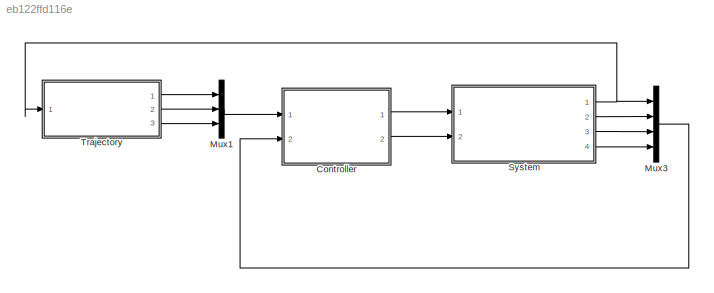
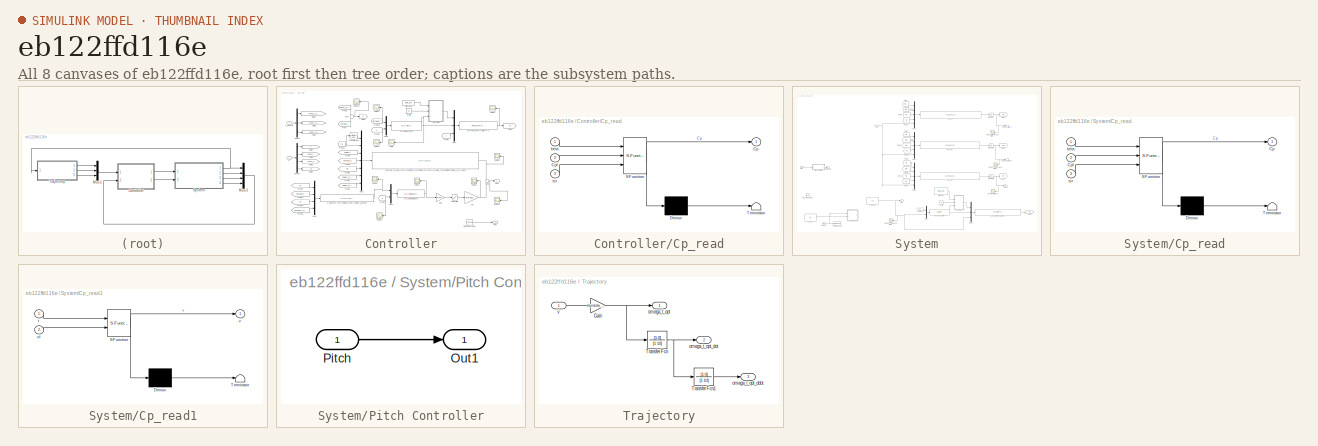
[diagram: thumbnail index - all 8 canvases of the model, root first then tree order]
MODEL slx_eb122ffd116e
KIND model
CONFIG AbsTol = auto
CONFIG FixedStep = auto
CONFIG MaxStep = auto
CONFIG MinStep = auto
CONFIG RelTol = 1e-3
CONFIG SampleTimeConstraint = Unconstrained
CONFIG Solver = VariableStepAuto
CONFIG SolverMode = Auto
CONFIG SolverName = VariableStepAuto
CONFIG StartTime = 0.0
CONFIG StopTime = 600
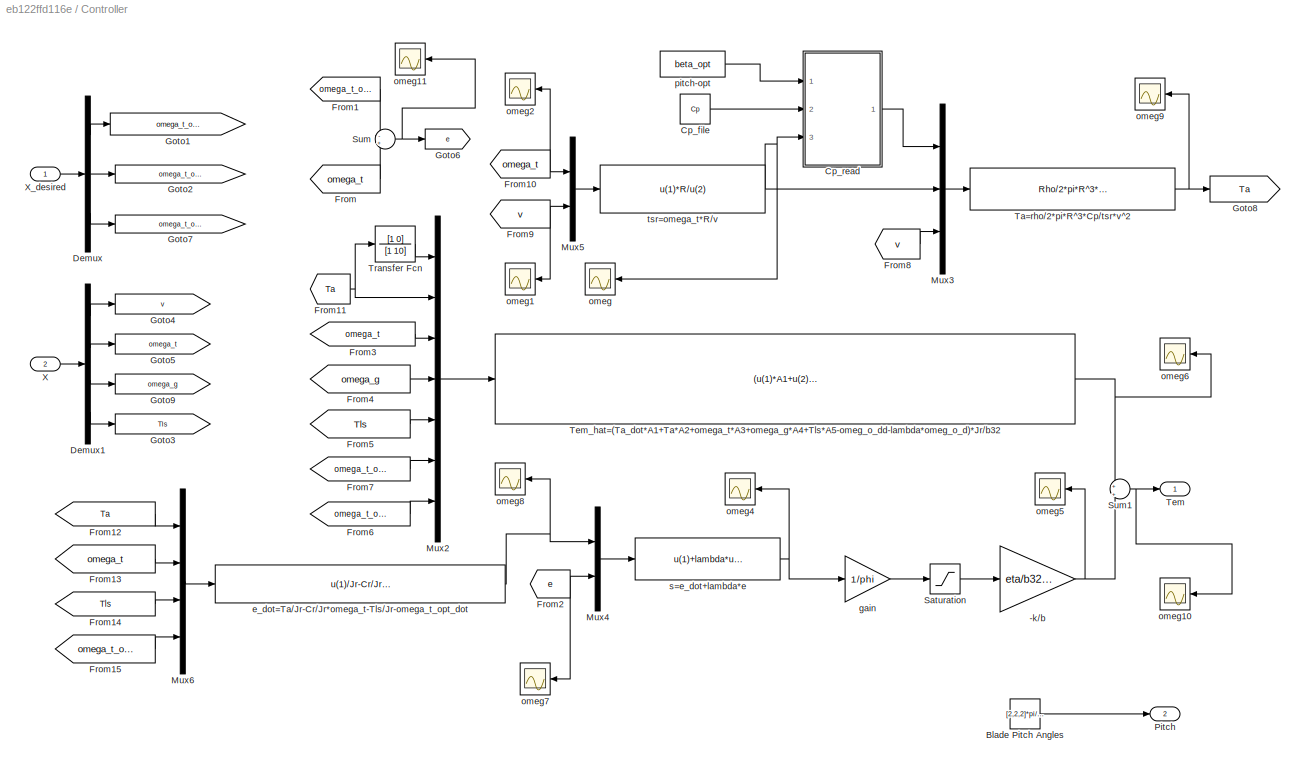
BLOCK [SubSystem] Controller
  Ports = [2, 2]
  RequestExecContextInheritance = off
  Variant = off
BLOCK [Gain] Controller/-k//b
  Gain = eta/b32*Jr
  OutDataTypeStr = Inherit: Inherit via internal rule
  ParamDataTypeStr = Inherit: Inherit via internal rule
  SaturateOnIntegerOverflow = off
BLOCK [Constant] Controller/Blade Pitch Angles
  Value = [2,2,2]*pi/180
BLOCK [Constant] Controller/Cp_file
  Value = Cp
BLOCK [SubSystem] Controller/Cp_read
  ErrorFcn = Stateflow.Translate.translate
  PermitHierarchicalResolution = ExplicitOnly
  Ports = [3, 1]
  RequestExecContextInheritance = off
  SFBlockType = MATLAB Function
  TreatAsAtomicUnit = on
  Variant = off
BLOCK [Demux] Controller/Cp_read/ Demux 
  Outputs = 1
  Ports = [1, 1]
BLOCK [S-Function] Controller/Cp_read/ SFunction 
  EnableBusSupport = on
  FunctionName = sf_sfun
  PortCounts = [3 2]
  Ports = [3, 2]
  SFunctionDeploymentMode = off
  Tag = Stateflow S-Function img_Closedloop 1
BLOCK [Terminator] Controller/Cp_read/ Terminator 
BLOCK [Outport] Controller/Cp_read/Cp
  IconDisplay = Port number
BLOCK [Inport] Controller/Cp_read/Cpf
  IconDisplay = Port number
  Port = 2
BLOCK [Inport] Controller/Cp_read/beta
  IconDisplay = Port number
BLOCK [Inport] Controller/Cp_read/tsr
  IconDisplay = Port number
  Port = 3
BLOCK [Demux] Controller/Demux
  DisplayOption = bar
  Outputs = 3
  Ports = [1, 3]
BLOCK [Demux] Controller/Demux1
  DisplayOption = bar
  Ports = [1, 4]
BLOCK [From] Controller/From
  GotoTag = omega_t
BLOCK [From] Controller/From1
  GotoTag = omega_t_opt
BLOCK [From] Controller/From10
  GotoTag = omega_t
BLOCK [From] Controller/From11
  GotoTag = Ta
BLOCK [From] Controller/From12
  GotoTag = Ta
BLOCK [From] Controller/From13
  GotoTag = omega_t
BLOCK [From] Controller/From14
  GotoTag = Tls
BLOCK [From] Controller/From15
  GotoTag = omega_t_opt_dot
BLOCK [From] Controller/From2
  GotoTag = e
BLOCK [From] Controller/From3
  GotoTag = omega_t
BLOCK [From] Controller/From4
  GotoTag = omega_g
BLOCK [From] Controller/From5
  GotoTag = Tls
BLOCK [From] Controller/From6
  GotoTag = omega_t_opt_dot
BLOCK [From] Controller/From7
  GotoTag = omega_t_opt_ddot
BLOCK [From] Controller/From8
  GotoTag = v
BLOCK [From] Controller/From9
  GotoTag = v
BLOCK [Goto] Controller/Goto1
  GotoTag = omega_t_opt
BLOCK [Goto] Controller/Goto2
  GotoTag = omega_t_opt_dot
BLOCK [Goto] Controller/Goto3
  GotoTag = Tls
BLOCK [Goto] Controller/Goto4
  GotoTag = v
BLOCK [Goto] Controller/Goto5
  GotoTag = omega_t
BLOCK [Goto] Controller/Goto6
  GotoTag = e
BLOCK [Goto] Controller/Goto7
  GotoTag = omega_t_opt_ddot
BLOCK [Goto] Controller/Goto8
  GotoTag = Ta
BLOCK [Goto] Controller/Goto9
  GotoTag = omega_g
BLOCK [Mux] Controller/Mux2
  DisplayOption = bar
  Inputs = 7
  Ports = [7, 1]
BLOCK [Mux] Controller/Mux3
  DisplayOption = bar
  Inputs = 3
  Ports = [3, 1]
BLOCK [Mux] Controller/Mux4
  DisplayOption = bar
  Inputs = 2
  Ports = [2, 1]
BLOCK [Mux] Controller/Mux5
  DisplayOption = bar
  Inputs = 2
  Ports = [2, 1]
BLOCK [Mux] Controller/Mux6
  DisplayOption = bar
  Ports = [4, 1]
BLOCK [Outport] Controller/Pitch
  IconDisplay = Port number
  Port = 2
BLOCK [Saturate] Controller/Saturation
  InputPortMap = u0
  LowerLimit = -1
  Ports = [1, 1]
  UpperLimit = 1
BLOCK [Sum] Controller/Sum
  IconShape = round
  InputSameDT = off
  Inputs = -+
  OutDataTypeStr = Inherit: Inherit via internal rule
  Ports = [2, 1]
  SaturateOnIntegerOverflow = off
BLOCK [Sum] Controller/Sum1
  IconShape = round
  InputSameDT = off
  Inputs = +|+
  OutDataTypeStr = Inherit: Inherit via internal rule
  Ports = [2, 1]
  SaturateOnIntegerOverflow = off
BLOCK [Fcn] Controller/Ta=rho//2*pi*R^3*Cp//tsr*v^2
  Expr = Rho/2*pi*R^3*u(1)/u(2)*u(3)^2
BLOCK [Outport] Controller/Tem
  IconDisplay = Port number
BLOCK [Fcn] Controller/Tem_hat=(Ta_dot*A1+Ta*A2+omega_t*A3+omega_g*A4+Tls*A5-omeg_o_dd-lambda*omeg_o_d)*Jr//b32
  Expr = (u(1)*A1+u(2)*A2+u(3)*A3+u(4)*A4+u(5)*A5-u(6)-lambda*u(7))*Jr/b32
BLOCK [TransferFcn] Controller/Transfer Fcn
  Denominator = [1 10]
  Numerator = [1 0]
BLOCK [Inport] Controller/X
  IconDisplay = Port number
  Port = 2
BLOCK [Inport] Controller/X_desired
  IconDisplay = Port number
BLOCK [Fcn] Controller/e_dot=Ta//Jr-Cr//Jr*omega_t-Tls//Jr-omega_t_opt_dot
  Expr = u(1)/Jr-Cr/Jr*u(2)-u(3)/Jr-u(4)
BLOCK [Gain] Controller/gain
  Gain = 1/phi
  OutDataTypeStr = Inherit: Inherit via internal rule
  ParamDataTypeStr = Inherit: Inherit via internal rule
  SaturateOnIntegerOverflow = off
BLOCK [Scope] Controller/omeg
  Ports = [1]
  ScopeSpecificationString = Simulink.scopes.TimeScopeBlockCfg('CurrentConfiguration', extmgr.ConfigurationSet(extmgr.Configuration('Core','General UI',true),extmgr.Configuration('Core','Source UI',true),extmgr.Configuration('Sources','WiredSimulink',true,'DataLoggingSaveFormat','StructureWithTime','DataLoggingDecimation','1','DataLoggingDecimateData',true,'DataLoggingVariableName','ScopeData1'),extmgr.Configuration('Visuals'...<+2042ch>
BLOCK [Scope] Controller/omeg1
  Ports = [1]
  ScopeSpecificationString = Simulink.scopes.TimeScopeBlockCfg('CurrentConfiguration', extmgr.ConfigurationSet(extmgr.Configuration('Core','General UI',true),extmgr.Configuration('Core','Source UI',true),extmgr.Configuration('Sources','WiredSimulink',true,'DataLoggingSaveFormat','StructureWithTime','DataLoggingDecimation','1','DataLoggingDecimateData',true,'DataLoggingVariableName','ScopeData2'),extmgr.Configuration('Visuals'...<+1998ch>
BLOCK [Scope] Controller/omeg10
  Ports = [1]
  ScopeSpecificationString = Simulink.scopes.TimeScopeBlockCfg('CurrentConfiguration', extmgr.ConfigurationSet(extmgr.Configuration('Core','General UI',true),extmgr.Configuration('Core','Source UI',true),extmgr.Configuration('Sources','WiredSimulink',true,'DataLoggingSaveFormat','StructureWithTime','DataLoggingDecimation','1','DataLoggingDecimateData',true,'DataLoggingVariableName','ScopeData11'),extmgr.Configuration('Visuals...<+2060ch>
BLOCK [Scope] Controller/omeg11
  Ports = [1]
  ScopeSpecificationString = Simulink.scopes.TimeScopeBlockCfg('CurrentConfiguration', extmgr.ConfigurationSet(extmgr.Configuration('Core','General UI',true),extmgr.Configuration('Core','Source UI',true),extmgr.Configuration('Sources','WiredSimulink',true,'DataLoggingSaveFormat','StructureWithTime','DataLoggingDecimation','1','DataLoggingDecimateData',true,'DataLoggingVariableName','ScopeData16'),extmgr.Configuration('Visuals...<+1978ch>
BLOCK [Scope] Controller/omeg2
  Ports = [1]
  ScopeSpecificationString = Simulink.scopes.TimeScopeBlockCfg('CurrentConfiguration', extmgr.ConfigurationSet(extmgr.Configuration('Core','General UI',true),extmgr.Configuration('Core','Source UI',true),extmgr.Configuration('Sources','WiredSimulink',true,'DataLoggingSaveFormat','StructureWithTime','DataLoggingDecimation','1','DataLoggingDecimateData',true,'DataLoggingVariableName','ScopeData3'),extmgr.Configuration('Visuals'...<+1977ch>
BLOCK [Scope] Controller/omeg4
  Ports = [1]
  ScopeSpecificationString = Simulink.scopes.TimeScopeBlockCfg('CurrentConfiguration', extmgr.ConfigurationSet(extmgr.Configuration('Core','General UI',true),extmgr.Configuration('Core','Source UI',true),extmgr.Configuration('Sources','WiredSimulink',true,'DataLoggingSaveFormat','StructureWithTime','DataLoggingDecimation','1','DataLoggingDecimateData',true,'DataLoggingVariableName','ScopeData5'),extmgr.Configuration('Visuals'...<+2058ch>
BLOCK [Scope] Controller/omeg5
  Ports = [1]
  ScopeSpecificationString = Simulink.scopes.TimeScopeBlockCfg('CurrentConfiguration', extmgr.ConfigurationSet(extmgr.Configuration('Core','General UI',true),extmgr.Configuration('Core','Source UI',true),extmgr.Configuration('Sources','WiredSimulink',true,'DataLoggingSaveFormat','StructureWithTime','DataLoggingDecimation','1','DataLoggingDecimateData',true,'DataLoggingVariableName','ScopeData6'),extmgr.Configuration('Visuals'...<+2041ch>
BLOCK [Scope] Controller/omeg6
  Ports = [1]
  ScopeSpecificationString = Simulink.scopes.TimeScopeBlockCfg('CurrentConfiguration', extmgr.ConfigurationSet(extmgr.Configuration('Core','General UI',true),extmgr.Configuration('Core','Source UI',true),extmgr.Configuration('Sources','WiredSimulink',true,'DataLoggingSaveFormat','StructureWithTime','DataLoggingDecimation','1','DataLoggingDecimateData',true,'DataLoggingVariableName','ScopeData7'),extmgr.Configuration('Visuals'...<+2125ch>
BLOCK [Scope] Controller/omeg7
  Ports = [1]
  ScopeSpecificationString = Simulink.scopes.TimeScopeBlockCfg('CurrentConfiguration', extmgr.ConfigurationSet(extmgr.Configuration('Core','General UI',true),extmgr.Configuration('Core','Source UI',true),extmgr.Configuration('Sources','WiredSimulink',true,'DataLoggingSaveFormat','StructureWithTime','DataLoggingDecimation','1','DataLoggingDecimateData',true,'DataLoggingVariableName','ScopeData8'),extmgr.Configuration('Visuals'...<+1997ch>
BLOCK [Scope] Controller/omeg8
  Ports = [1]
  ScopeSpecificationString = Simulink.scopes.TimeScopeBlockCfg('CurrentConfiguration', extmgr.ConfigurationSet(extmgr.Configuration('Core','General UI',true),extmgr.Configuration('Core','Source UI',true),extmgr.Configuration('Sources','WiredSimulink',true,'DataLoggingSaveFormat','StructureWithTime','DataLoggingDecimation','1','DataLoggingDecimateData',true,'DataLoggingVariableName','ScopeData9'),extmgr.Configuration('Visuals'...<+2056ch>
BLOCK [Scope] Controller/omeg9
  Ports = [1]
  ScopeSpecificationString = Simulink.scopes.TimeScopeBlockCfg('CurrentConfiguration', extmgr.ConfigurationSet(extmgr.Configuration('Core','General UI',true),extmgr.Configuration('Core','Source UI',true),extmgr.Configuration('Sources','WiredSimulink',true,'DataLoggingSaveFormat','StructureWithTime','DataLoggingDecimation','1','DataLoggingDecimateData',true,'DataLoggingVariableName','ScopeData10'),extmgr.Configuration('Visuals...<+2048ch>
BLOCK [Constant] Controller/pitch-opt
  Value = beta_opt
BLOCK [Fcn] Controller/s=e_dot+lambda*e
  Expr = u(1)+lambda*u(2)
BLOCK [Fcn] Controller/tsr=omega_t*R//v
  Expr = u(1)*R/u(2)
BLOCK [Mux] Mux1
  DisplayOption = bar
  Inputs = 3
  Ports = [3, 1]
BLOCK [Mux] Mux3
  DisplayOption = bar
  Ports = [4, 1]
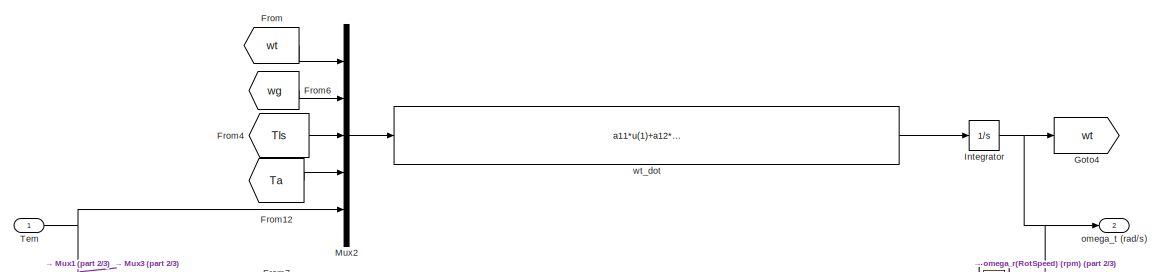
[diagram: System - part 1/3, top center region]
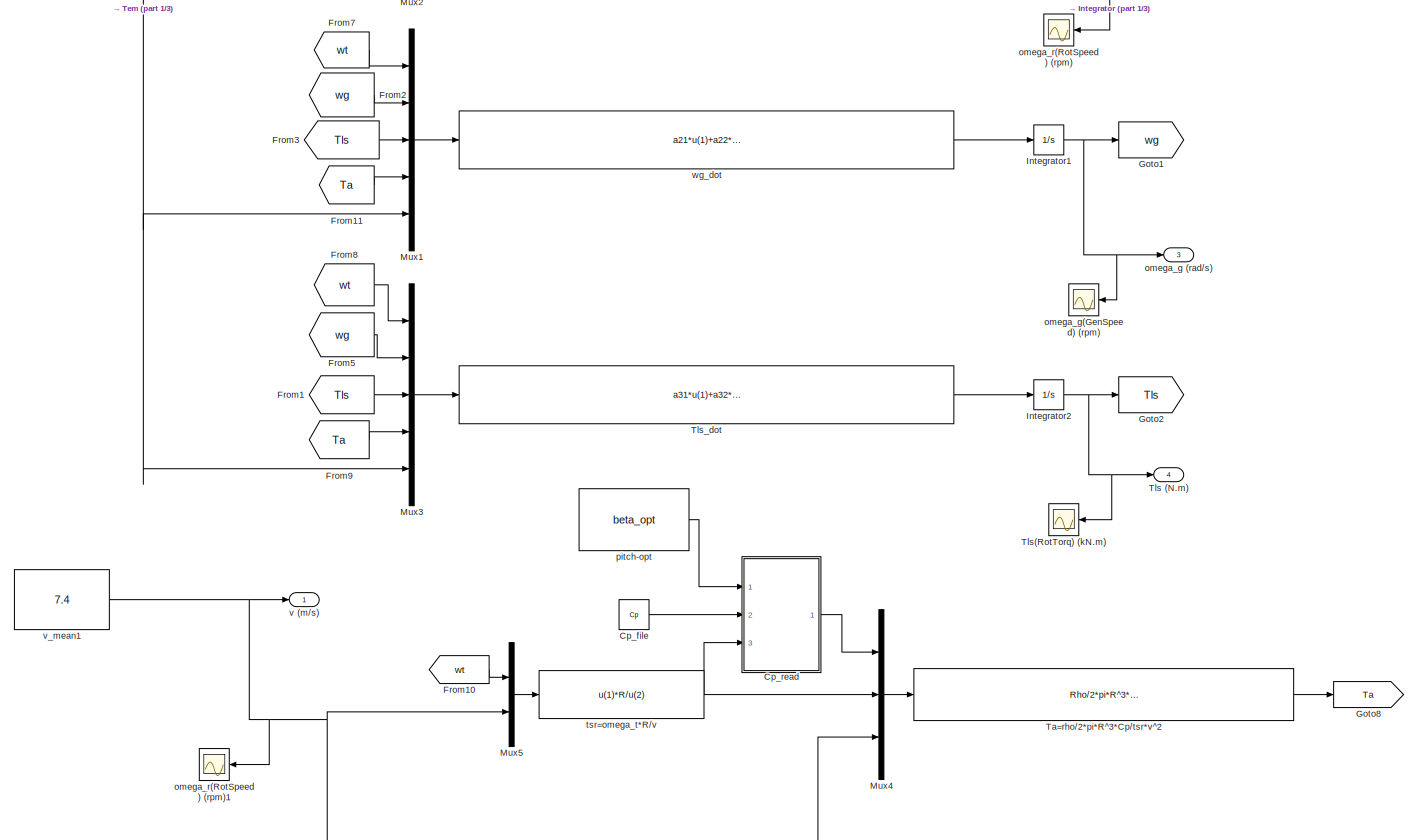
[diagram: System - part 2/3, center side, full height]
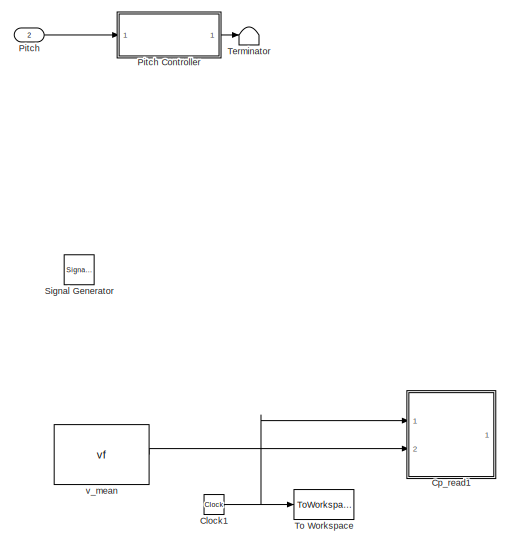
[diagram: System - part 3/3, bottom left region]
BLOCK [SubSystem] System
  Ports = [2, 4]
  RequestExecContextInheritance = off
  Variant = off
BLOCK [Clock] System/Clock1
BLOCK [Constant] System/Cp_file
  Value = Cp
BLOCK [SubSystem] System/Cp_read
  ErrorFcn = Stateflow.Translate.translate
  PermitHierarchicalResolution = ExplicitOnly
  Ports = [3, 1]
  RequestExecContextInheritance = off
  SFBlockType = MATLAB Function
  TreatAsAtomicUnit = on
  Variant = off
BLOCK [Demux] System/Cp_read/ Demux 
  Outputs = 1
  Ports = [1, 1]
BLOCK [S-Function] System/Cp_read/ SFunction 
  EnableBusSupport = on
  FunctionName = sf_sfun
  PortCounts = [3 2]
  Ports = [3, 2]
  SFunctionDeploymentMode = off
  Tag = Stateflow S-Function img_Closedloop 3
BLOCK [Terminator] System/Cp_read/ Terminator 
BLOCK [Outport] System/Cp_read/Cp
  IconDisplay = Port number
BLOCK [Inport] System/Cp_read/Cpf
  IconDisplay = Port number
  Port = 2
BLOCK [Inport] System/Cp_read/beta
  IconDisplay = Port number
BLOCK [Inport] System/Cp_read/tsr
  IconDisplay = Port number
  Port = 3
BLOCK [SubSystem] System/Cp_read1
  ErrorFcn = Stateflow.Translate.translate
  PermitHierarchicalResolution = ExplicitOnly
  Ports = [2, 1]
  RequestExecContextInheritance = off
  SFBlockType = MATLAB Function
  TreatAsAtomicUnit = on
  Variant = off
BLOCK [Demux] System/Cp_read1/ Demux 
  Outputs = 1
  Ports = [1, 1]
BLOCK [S-Function] System/Cp_read1/ SFunction 
  EnableBusSupport = on
  FunctionName = sf_sfun
  PortCounts = [2 2]
  Ports = [2, 2]
  SFunctionDeploymentMode = off
  Tag = Stateflow S-Function img_Closedloop 2
BLOCK [Terminator] System/Cp_read1/ Terminator 
BLOCK [Inport] System/Cp_read1/t
  IconDisplay = Port number
BLOCK [Outport] System/Cp_read1/v
  IconDisplay = Port number
BLOCK [Inport] System/Cp_read1/vf
  IconDisplay = Port number
  Port = 2
BLOCK [From] System/From
  GotoTag = wt
BLOCK [From] System/From1
  GotoTag = Tls
BLOCK [From] System/From10
  GotoTag = wt
BLOCK [From] System/From11
  GotoTag = Ta
BLOCK [From] System/From12
  GotoTag = Ta
BLOCK [From] System/From2
  GotoTag = wg
BLOCK [From] System/From3
  GotoTag = Tls
BLOCK [From] System/From4
  GotoTag = Tls
BLOCK [From] System/From5
  GotoTag = wg
BLOCK [From] System/From6
  GotoTag = wg
BLOCK [From] System/From7
  GotoTag = wt
BLOCK [From] System/From8
  GotoTag = wt
BLOCK [From] System/From9
  GotoTag = Ta
BLOCK [Goto] System/Goto1
  GotoTag = wg
BLOCK [Goto] System/Goto2
  GotoTag = Tls
BLOCK [Goto] System/Goto4
  GotoTag = wt
BLOCK [Goto] System/Goto8
  GotoTag = Ta
BLOCK [Integrator] System/Integrator
  InitialCondition = 2
  Ports = [1, 1]
BLOCK [Integrator] System/Integrator1
  InitialCondition = 2
  Ports = [1, 1]
BLOCK [Integrator] System/Integrator2
  Ports = [1, 1]
BLOCK [Mux] System/Mux1
  DisplayOption = bar
  Inputs = 5
  Ports = [5, 1]
BLOCK [Mux] System/Mux2
  DisplayOption = bar
  Inputs = 5
  Ports = [5, 1]
BLOCK [Mux] System/Mux3
  DisplayOption = bar
  Inputs = 5
  Ports = [5, 1]
BLOCK [Mux] System/Mux4
  DisplayOption = bar
  Inputs = 3
  Ports = [3, 1]
BLOCK [Mux] System/Mux5
  DisplayOption = bar
  Inputs = 2
  Ports = [2, 1]
BLOCK [Inport] System/Pitch
  IconDisplay = Port number
  Port = 2
BLOCK [SubSystem] System/Pitch Controller
  Ports = [1, 1]
  RequestExecContextInheritance = off
  Variant = off
BLOCK [Outport] System/Pitch Controller/Out1
  IconDisplay = Port number
BLOCK [Inport] System/Pitch Controller/Pitch
  IconDisplay = Port number
BLOCK [SignalGenerator] System/Signal Generator
  Ports = [0, 1]
  Units = rad/sec
  WaveForm = random
BLOCK [Fcn] System/Ta=rho//2*pi*R^3*Cp//tsr*v^2
  Expr = Rho/2*pi*R^3*u(1)/u(2)*u(3)^2
BLOCK [Inport] System/Tem
  IconDisplay = Port number
BLOCK [Terminator] System/Terminator
BLOCK [Outport] System/Tls (N.m)
  IconDisplay = Port number
  Port = 4
BLOCK [Scope] System/Tls(RotTorq) (kN.m)
  Ports = [1]
  ScopeSpecificationString = Simulink.scopes.TimeScopeBlockCfg('CurrentConfiguration', extmgr.ConfigurationSet(extmgr.Configuration('Core','General UI',true),extmgr.Configuration('Core','Source UI',true),extmgr.Configuration('Sources','WiredSimulink',true,'DataLoggingSaveFormat','StructureWithTime','DataLoggingDecimation','1','DataLoggingDecimateData',true,'DataLoggingVariableName','ScopeData10'),extmgr.Configuration('Visuals...<+2038ch>
BLOCK [Fcn] System/Tls_dot
  Expr = a31*u(1)+a32*u(2)+a33*u(3)+b31*u(4)+b32*u(5)
BLOCK [ToWorkspace] System/To Workspace
  MaxDataPoints = inf
  Ports = [1]
  SampleTime = -1
  VariableName = Time
BLOCK [Outport] System/omega_g (rad//s)
  IconDisplay = Port number
  Port = 3
BLOCK [Scope] System/omega_g(GenSpeed) (rpm)
  Ports = [1]
  ScopeSpecificationString = Simulink.scopes.TimeScopeBlockCfg('CurrentConfiguration', extmgr.ConfigurationSet(extmgr.Configuration('Core','General UI',true),extmgr.Configuration('Core','Source UI',true),extmgr.Configuration('Sources','WiredSimulink',true,'DataLoggingSaveFormat','StructureWithTime','DataLoggingDecimation','1','DataLoggingDecimateData',true,'DataLoggingVariableName','ScopeData14'),extmgr.Configuration('Visuals...<+2031ch>
BLOCK [Scope] System/omega_r(RotSpeed) (rpm)
  Ports = [1]
  ScopeSpecificationString = Simulink.scopes.TimeScopeBlockCfg('CurrentConfiguration', extmgr.ConfigurationSet(extmgr.Configuration('Core','General UI',true,'FigureColor',[1 1 1]),extmgr.Configuration('Core','Source UI',true),extmgr.Configuration('Sources','WiredSimulink',true,'DataLoggingSaveFormat','StructureWithTime','DataLoggingDecimation','1','DataLoggingDecimateData',true),extmgr.Configuration('Visuals','Time Domain',tr...<+2047ch>
BLOCK [Scope] System/omega_r(RotSpeed) (rpm)1
  Ports = [1]
  ScopeSpecificationString = Simulink.scopes.TimeScopeBlockCfg('CurrentConfiguration', extmgr.ConfigurationSet(extmgr.Configuration('Core','General UI',true),extmgr.Configuration('Core','Source UI',true),extmgr.Configuration('Sources','WiredSimulink',true,'DataLoggingSaveFormat','StructureWithTime','DataLoggingDecimation','1','DataLoggingDecimateData',true,'DataLoggingVariableName','ScopeData1'),extmgr.Configuration('Visuals'...<+1693ch>
BLOCK [Outport] System/omega_t (rad//s)
  IconDisplay = Port number
  Port = 2
BLOCK [Constant] System/pitch-opt
  Value = beta_opt
BLOCK [Fcn] System/tsr=omega_t*R//v
  Expr = u(1)*R/u(2)
BLOCK [Outport] System/v (m//s)
  IconDisplay = Port number
BLOCK [Constant] System/v_mean
  Value = vf
BLOCK [Constant] System/v_mean1
  Value = 7.4
BLOCK [Fcn] System/wg_dot
  Expr = a21*u(1)+a22*u(2)+a23*u(3)+b21*u(4)+b22*u(5)
BLOCK [Fcn] System/wt_dot
  Expr = a11*u(1)+a12*u(2)+a13*u(3)+b11*u(4)+b12*u(5)
BLOCK [SubSystem] Trajectory
  Ports = [1, 3]
  RequestExecContextInheritance = off
  Variant = off
BLOCK [Gain] Trajectory/Gain
  Gain = lambda_opt/R
  OutDataTypeStr = Inherit: Inherit via internal rule
  ParamDataTypeStr = Inherit: Inherit via internal rule
  SaturateOnIntegerOverflow = off
BLOCK [TransferFcn] Trajectory/Transfer Fcn
  Denominator = [1 10]
  Numerator = [1 0]
BLOCK [TransferFcn] Trajectory/Transfer Fcn1
  Denominator = [1 10]
  Numerator = [1 0]
BLOCK [Outport] Trajectory/omega_t_opt
  IconDisplay = Port number
BLOCK [Outport] Trajectory/omega_t_opt_ddot
  IconDisplay = Port number
  Port = 3
BLOCK [Outport] Trajectory/omega_t_opt_dot
  IconDisplay = Port number
  Port = 2
BLOCK [Inport] Trajectory/v
  IconDisplay = Port number
NET Controller/-k//b:1 -> Controller/Sum1:2, Controller/omeg5:1
LINE Controller/Blade Pitch Angles:1 -> Controller/Pitch:1
LINE Controller/Cp_file:1 -> Controller/Cp_read:2
LINE Controller/Cp_read:1 -> Controller/Mux3:1
LINE Controller/Demux1:1 -> Controller/Goto4:1
LINE Controller/Demux1:2 -> Controller/Goto5:1
LINE Controller/Demux1:3 -> Controller/Goto9:1
LINE Controller/Demux1:4 -> Controller/Goto3:1
LINE Controller/Demux:1 -> Controller/Goto1:1
LINE Controller/Demux:2 -> Controller/Goto2:1
LINE Controller/Demux:3 -> Controller/Goto7:1
NET Controller/From10:1 -> Controller/Mux5:1, Controller/omeg2:1
NET Controller/From11:1 -> Controller/Mux2:2, Controller/Transfer Fcn:1
LINE Controller/From12:1 -> Controller/Mux6:1
LINE Controller/From13:1 -> Controller/Mux6:2
LINE Controller/From14:1 -> Controller/Mux6:3
LINE Controller/From15:1 -> Controller/Mux6:4
LINE Controller/From1:1 -> Controller/Sum:1
NET Controller/From2:1 -> Controller/Mux4:2, Controller/omeg7:1
LINE Controller/From3:1 -> Controller/Mux2:3
LINE Controller/From4:1 -> Controller/Mux2:4
LINE Controller/From5:1 -> Controller/Mux2:5
LINE Controller/From6:1 -> Controller/Mux2:7
LINE Controller/From7:1 -> Controller/Mux2:6
LINE Controller/From8:1 -> Controller/Mux3:3
NET Controller/From9:1 -> Controller/Mux5:2, Controller/omeg1:1
LINE Controller/From:1 -> Controller/Sum:2
LINE Controller/Mux2:1 -> Controller/Tem_hat=(Ta_dot*A1+Ta*A2+omega_t*A3+omega_g*A4+Tls*A5-omeg_o_dd-lambda*omeg_o_d)*Jr//b32:1
LINE Controller/Mux3:1 -> Controller/Ta=rho//2*pi*R^3*Cp//tsr*v^2:1
LINE Controller/Mux4:1 -> Controller/s=e_dot+lambda*e:1
LINE Controller/Mux5:1 -> Controller/tsr=omega_t*R//v:1
LINE Controller/Mux6:1 -> Controller/e_dot=Ta//Jr-Cr//Jr*omega_t-Tls//Jr-omega_t_opt_dot:1
LINE Controller/Saturation:1 -> Controller/-k//b:1
NET Controller/Sum1:1 -> Controller/Tem:1, Controller/omeg10:1
NET Controller/Sum:1 -> Controller/Goto6:1, Controller/omeg11:1
NET Controller/Ta=rho//2*pi*R^3*Cp//tsr*v^2:1 -> Controller/Goto8:1, Controller/omeg9:1
NET Controller/Tem_hat=(Ta_dot*A1+Ta*A2+omega_t*A3+omega_g*A4+Tls*A5-omeg_o_dd-lambda*omeg_o_d)*Jr//b32:1 -> Controller/Sum1:1, Controller/omeg6:1
LINE Controller/Transfer Fcn:1 -> Controller/Mux2:1
LINE Controller/X:1 -> Controller/Demux1:1
LINE Controller/X_desired:1 -> Controller/Demux:1
NET Controller/e_dot=Ta//Jr-Cr//Jr*omega_t-Tls//Jr-omega_t_opt_dot:1 -> Controller/Mux4:1, Controller/omeg8:1
LINE Controller/gain:1 -> Controller/Saturation:1
LINE Controller/pitch-opt:1 -> Controller/Cp_read:1
NET Controller/s=e_dot+lambda*e:1 -> Controller/gain:1, Controller/omeg4:1
NET Controller/tsr=omega_t*R//v:1 -> Controller/Cp_read:3, Controller/Mux3:2, Controller/omeg:1
LINE Controller:1 -> System:1
LINE Controller:2 -> System:2
LINE Mux1:1 -> Controller:1
LINE Mux3:1 -> Controller:2
NET System/Clock1:1 -> System/Cp_read1:1, System/To Workspace:1
LINE System/Cp_file:1 -> System/Cp_read:2
LINE System/Cp_read:1 -> System/Mux4:1
LINE System/From10:1 -> System/Mux5:1
LINE System/From11:1 -> System/Mux1:4
LINE System/From12:1 -> System/Mux2:4
LINE System/From1:1 -> System/Mux3:3
LINE System/From2:1 -> System/Mux1:2
LINE System/From3:1 -> System/Mux1:3
LINE System/From4:1 -> System/Mux2:3
LINE System/From5:1 -> System/Mux3:2
LINE System/From6:1 -> System/Mux2:2
LINE System/From7:1 -> System/Mux1:1
LINE System/From8:1 -> System/Mux3:1
LINE System/From9:1 -> System/Mux3:4
LINE System/From:1 -> System/Mux2:1
NET System/Integrator1:1 -> System/Goto1:1, System/omega_g (rad//s):1, System/omega_g(GenSpeed) (rpm):1
NET System/Integrator2:1 -> System/Goto2:1, System/Tls (N.m):1, System/Tls(RotTorq) (kN.m):1
NET System/Integrator:1 -> System/Goto4:1, System/omega_r(RotSpeed) (rpm):1, System/omega_t (rad//s):1
LINE System/Mux1:1 -> System/wg_dot:1
LINE System/Mux2:1 -> System/wt_dot:1
LINE System/Mux3:1 -> System/Tls_dot:1
LINE System/Mux4:1 -> System/Ta=rho//2*pi*R^3*Cp//tsr*v^2:1
LINE System/Mux5:1 -> System/tsr=omega_t*R//v:1
LINE System/Pitch Controller/Pitch:1 -> System/Pitch Controller/Out1:1
LINE System/Pitch Controller:1 -> System/Terminator:1
LINE System/Pitch:1 -> System/Pitch Controller:1
LINE System/Ta=rho//2*pi*R^3*Cp//tsr*v^2:1 -> System/Goto8:1
NET System/Tem:1 -> System/Mux1:5, System/Mux2:5, System/Mux3:5
LINE System/Tls_dot:1 -> System/Integrator2:1
LINE System/pitch-opt:1 -> System/Cp_read:1
NET System/tsr=omega_t*R//v:1 -> System/Cp_read:3, System/Mux4:2
NET System/v_mean1:1 -> System/Mux4:3, System/Mux5:2, System/omega_r(RotSpeed) (rpm)1:1, System/v (m//s):1
LINE System/v_mean:1 -> System/Cp_read1:2
LINE System/wg_dot:1 -> System/Integrator1:1
LINE System/wt_dot:1 -> System/Integrator:1
NET System:1 -> Mux3:1, Trajectory:1
LINE System:2 -> Mux3:2
LINE System:3 -> Mux3:3
LINE System:4 -> Mux3:4
NET Trajectory/Gain:1 -> Trajectory/Transfer Fcn:1, Trajectory/omega_t_opt:1
LINE Trajectory/Transfer Fcn1:1 -> Trajectory/omega_t_opt_ddot:1
NET Trajectory/Transfer Fcn:1 -> Trajectory/Transfer Fcn1:1, Trajectory/omega_t_opt_dot:1
LINE Trajectory/v:1 -> Trajectory/Gain:1
LINE Trajectory:1 -> Mux1:1
LINE Trajectory:2 -> Mux1:2
LINE Trajectory:3 -> Mux1:3
note: NET lines group one-source signal fan-out (src -> all destinations, sorted); 1:1 wires keep LINE
CHART Controller/Cp_read states=1 transitions=1
  STATE_LABEL 'eML_blk_kernel()'
  STATE_LABEL 'SCRIPT:\nfunction Cp = fcn(beta,Cpf,tsr)\n\n    if (tsr>19 || beta>90) \n        Cp=0;\n    else\n    beta1=floor(beta)+1;\n    tsr1=floor(tsr*10);\n    beta2=beta1+1;\n    tsr2=tsr1+1;\n    betap=beta-floor(beta);\n    tsrp=tsr*10-floor(tsr*10);\n    Cp1=Cpf(beta1,tsr1)+betap*(Cpf(beta2,tsr1)-Cpf(beta1,tsr1));\n    Cp2=Cpf(beta1,tsr2)+betap*(Cpf(beta2,tsr2)-Cpf(beta1,tsr2));\n    Cp=tsrp*(Cp2-Cp1)+Cp1;\n    end...<+4ch>'
CHART System/Cp_read1 states=1 transitions=1
  STATE_LABEL 'eML_blk_kernel()'
  STATE_LABEL 'SCRIPT:\nfunction v = fcn(t,vf)\n    v=vf(floor(2*t)+1);\nend'
CHART System/Cp_read states=1 transitions=1
  STATE_LABEL 'eML_blk_kernel()'
  STATE_LABEL 'SCRIPT:\nfunction Cp = fcn(beta,Cpf,tsr)\n\n    if (tsr>19) || (beta>90) || (tsr<1) \n        Cp=0;\n    else\n    beta1=floor(beta)+1;\n    tsr1=floor(tsr*10);\n    beta2=beta1+1;\n    tsr2=tsr1+1;\n    betap=beta-floor(beta);\n    tsrp=tsr*10-floor(tsr*10);\n    Cp1=Cpf(beta1,tsr1)+betap*(Cpf(beta2,tsr1)-Cpf(beta1,tsr1));\n    Cp2=Cpf(beta1,tsr2)+betap*(Cpf(beta2,tsr2)-Cpf(beta1,tsr2));\n    Cp=tsrp*(Cp2-Cp1)...<+17ch>'
